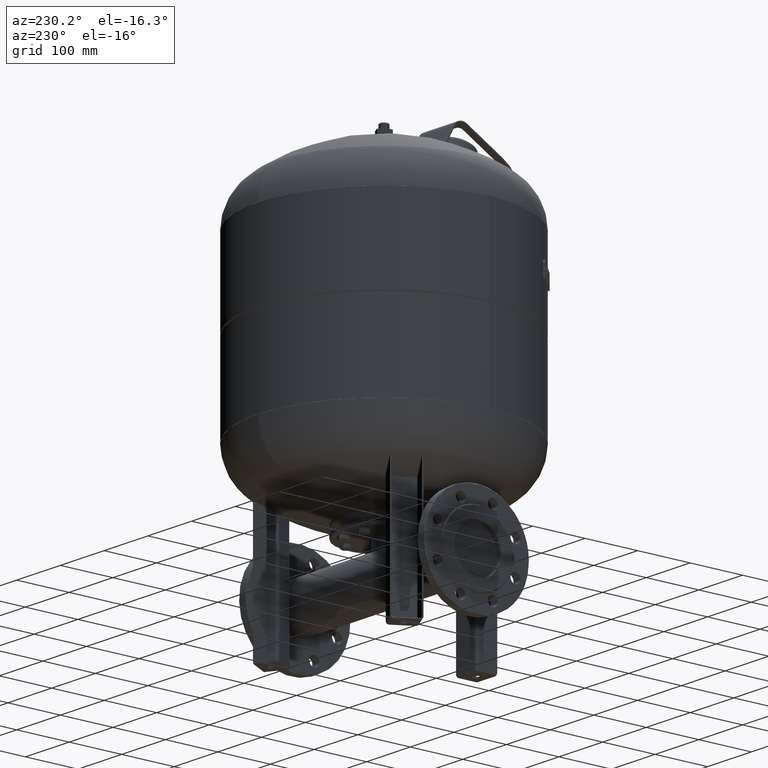
[diagram: clean part render]
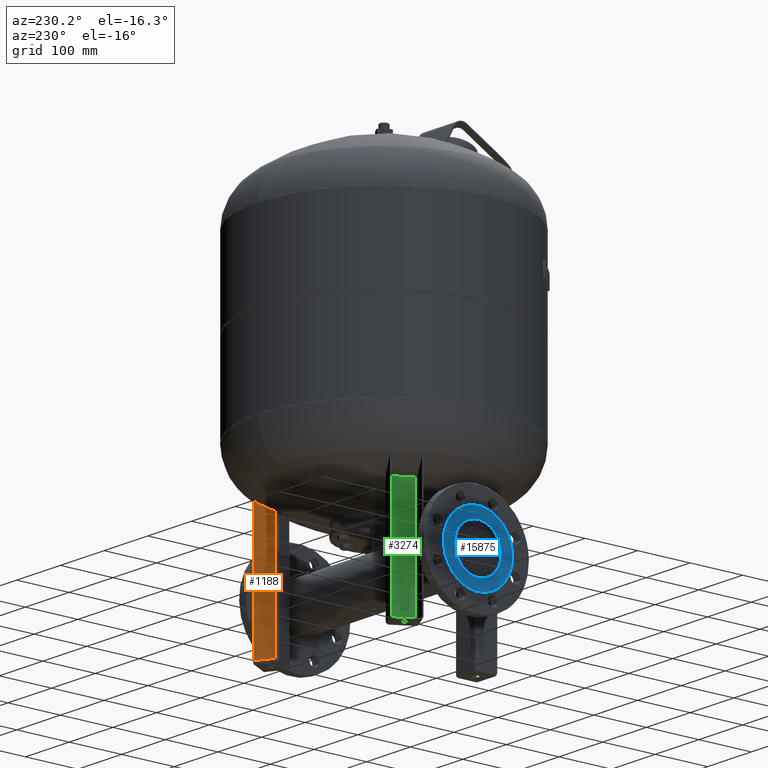
[diagram: same view with three faces highlighted in distinct colors, each labeled with its STEP entity id]
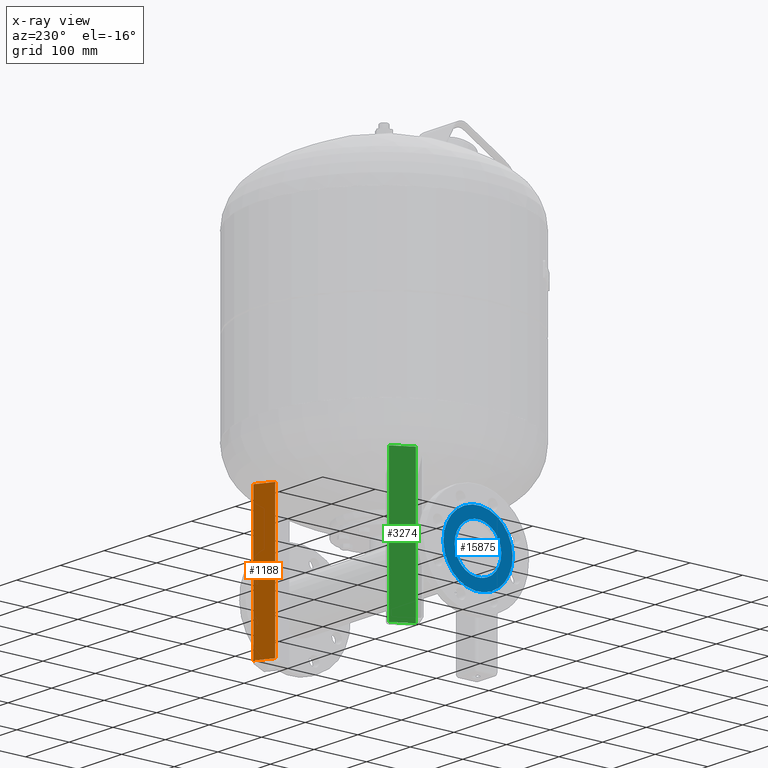
[diagram: x-ray of the same camera — body ghosted, the three highlighted faces saturated]
A machine part, auxiliary view with three faces highlighted in distinct colors.
The next image is the same camera in x-ray (body ghosted, the three faces saturated) — at least one of them is partly hidden behind the body in this view.
Their STEP definitions:

[orange] entity #1188 — the highlighted planar face has unit normal (-0.5, 0.866, 0).
#250=CARTESIAN_POINT('',(155.941941036073360,118.900635094610920,274.0));
#251=VERTEX_POINT('',#250);
#259=CARTESIAN_POINT('',(126.497077307402440,101.900635094610920,274.0));
#260=VERTEX_POINT('',#259);
#261=CARTESIAN_POINT('',(126.497077307402440,101.900635094610920,274.0));
#262=DIRECTION('',(0.866025403784439,0.500000000000000,0.0));
#263=VECTOR('',#262,34.000000000000007);
#264=LINE('',#261,#263);
#265=EDGE_CURVE('',#260,#251,#264,.T.);
#695=CARTESIAN_POINT('',(155.941941036073330,118.900635094610920,5.000000000000004));
#696=VERTEX_POINT('',#695);
#723=CARTESIAN_POINT('',(155.941941036073330,118.900635094610920,5.000000000000004));
#724=DIRECTION('',(0.0,0.0,1.0));
#725=VECTOR('',#724,269.0);
#726=LINE('',#723,#725);
#727=EDGE_CURVE('',#696,#251,#726,.T.);
#923=CARTESIAN_POINT('',(126.497077307402440,101.900635094610920,5.000000000000004));
#924=VERTEX_POINT('',#923);
#932=CARTESIAN_POINT('',(126.497077307402440,101.900635094610920,5.000000000000004));
#933=DIRECTION('',(0.866025403784438,0.500000000000000,0.0));
#934=VECTOR('',#933,33.999999999999986);
#935=LINE('',#932,#934);
#936=EDGE_CURVE('',#924,#696,#935,.T.);
#1058=CARTESIAN_POINT('',(126.497077307402440,101.900635094610920,5.000000000000004));
#1059=DIRECTION('',(0.0,0.0,1.0));
#1060=VECTOR('',#1059,269.0);
#1061=LINE('',#1058,#1060);
#1062=EDGE_CURVE('',#924,#260,#1061,.T.);
#1177=CARTESIAN_POINT('',(122.166950288480240,99.400635094610919,4.592425E-015));
#1178=DIRECTION('',(-0.500000000000000,0.866025403784439,1.836970E-016));
#1179=DIRECTION('',(-0.866025403784439,-0.500000000000000,-2.039447E-032));
#1180=AXIS2_PLACEMENT_3D('',#1177,#1178,#1179);
#1181=PLANE('',#1180);
#1182=ORIENTED_EDGE('',*,*,#727,.F.);
#1183=ORIENTED_EDGE('',*,*,#936,.F.);
#1184=ORIENTED_EDGE('',*,*,#1062,.T.);
#1185=ORIENTED_EDGE('',*,*,#265,.T.);
#1186=EDGE_LOOP('',(#1182,#1183,#1184,#1185));
#1187=FACE_OUTER_BOUND('',#1186,.T.);
#1188=ADVANCED_FACE('',(#1187),#1181,.T.);

[blue] entity #15875 — the highlighted face is a freeform B-spline surface patch.
#14298=CARTESIAN_POINT('',(-215.0,-25.257106536095925,54.023950854255077));
#14299=VERTEX_POINT('',#14298);
#14315=CARTESIAN_POINT('',(-215.0,25.257106536095929,175.976049145744920));
#14316=VERTEX_POINT('',#14315);
#14323=CARTESIAN_POINT('',(-215.0,0.0,115.0));
#14324=DIRECTION('',(1.0,7.029548E-017,1.697083E-016));
#14325=DIRECTION('',(1.836910E-016,-0.382683432365090,-0.923879532511287));
#14326=AXIS2_PLACEMENT_3D('',#14323,#14324,#14325);
#14327=CIRCLE('',#14326,66.0);
#14328=EDGE_CURVE('',#14316,#14299,#14327,.T.);
#14865=CARTESIAN_POINT('',(-215.0,-17.010278568628241,73.933554779873305));
#14866=VERTEX_POINT('',#14865);
#14882=CARTESIAN_POINT('',(-215.0,17.010278568628237,156.066445220126700));
#14883=VERTEX_POINT('',#14882);
#14890=CARTESIAN_POINT('',(-215.0,0.0,115.0));
#14891=DIRECTION('',(-1.000000000000000,-7.029548E-017,-1.697083E-016));
#14892=DIRECTION('',(1.836910E-016,-0.382683432365090,-0.923879532511287));
#14893=AXIS2_PLACEMENT_3D('',#14890,#14891,#14892);
#14894=CIRCLE('',#14893,44.449999999999996);
#14895=EDGE_CURVE('',#14883,#14866,#14894,.T.);
#15546=CARTESIAN_POINT('',(-215.0,0.0,115.0));
#15547=DIRECTION('',(-1.000000000000000,-7.029548E-017,-1.697083E-016));
#15548=DIRECTION('',(1.836910E-016,-0.382683432365090,-0.923879532511287));
#15549=AXIS2_PLACEMENT_3D('',#15546,#15547,#15548);
#15550=CIRCLE('',#15549,44.449999999999996);
#15551=EDGE_CURVE('',#14866,#14883,#15550,.T.);
#15850=CARTESIAN_POINT('',(-215.0,0.0,115.0));
#15851=DIRECTION('',(1.0,7.029548E-017,1.697083E-016));
#15852=DIRECTION('',(1.836910E-016,-0.382683432365090,-0.923879532511287));
#15853=AXIS2_PLACEMENT_3D('',#15850,#15851,#15852);
#15854=CIRCLE('',#15853,66.0);
#15855=EDGE_CURVE('',#14299,#14316,#15854,.T.);
#15862=CARTESIAN_POINT('',(-215.000000000000030,112.669047558312120,161.669047558312120));
#15863=CARTESIAN_POINT('',(-215.0,46.669047558312116,2.330952441687856));
#15864=CARTESIAN_POINT('',(-215.000000000000030,-46.669047558312172,227.669047558312120));
#15865=CARTESIAN_POINT('',(-214.999999999999970,-112.669047558312170,68.330952441687856));
#15866=B_SPLINE_SURFACE_WITH_KNOTS('',1,1,((#15862,#15864),(#15863,#15865)),.UNSPECIFIED.,.F.,.F.,.U.,(2,2),(2,2),(0.0,172.466311363681680),(0.0,172.466311363681710),.UNSPECIFIED.);
#15867=ORIENTED_EDGE('',*,*,#15855,.F.);
#15868=ORIENTED_EDGE('',*,*,#14328,.F.);
#15869=EDGE_LOOP('',(#15867,#15868));
#15870=FACE_OUTER_BOUND('',#15869,.T.);
#15871=ORIENTED_EDGE('',*,*,#15551,.F.);
#15872=ORIENTED_EDGE('',*,*,#14895,.F.);
#15873=EDGE_LOOP('',(#15871,#15872));
#15874=FACE_BOUND('',#15873,.T.);
#15875=ADVANCED_FACE('',(#15870,#15874),#15866,.T.);

[green] entity #3274 — the highlighted planar face has unit normal (0.866, -0.5, -0).
#2327=CARTESIAN_POINT('',(-126.832013797941230,96.320508075688835,274.0));
#2328=VERTEX_POINT('',#2327);
#2336=CARTESIAN_POINT('',(-146.832013797941220,61.679491924311279,274.0));
#2337=VERTEX_POINT('',#2336);
#2338=CARTESIAN_POINT('',(-146.832013797941220,61.679491924311279,274.0));
#2339=DIRECTION('',(0.500000000000000,0.866025403784439,0.0));
#2340=VECTOR('',#2339,40.0);
#2341=LINE('',#2338,#2340);
#2342=EDGE_CURVE('',#2337,#2328,#2341,.T.);
#2879=CARTESIAN_POINT('',(-146.832013797941220,61.679491924311286,4.500000000000004));
#2880=VERTEX_POINT('',#2879);
#2888=CARTESIAN_POINT('',(-126.832013797941230,96.320508075688835,4.499999999999996));
#2889=VERTEX_POINT('',#2888);
#2890=CARTESIAN_POINT('',(-146.832013797941220,61.679491924311286,4.500000000000004));
#2891=DIRECTION('',(0.500000000000000,0.866025403784439,-1.776357E-016));
#2892=VECTOR('',#2891,39.999999999999993);
#2893=LINE('',#2890,#2892);
#2894=EDGE_CURVE('',#2880,#2889,#2893,.T.);
#3247=CARTESIAN_POINT('',(-126.832013797941230,96.320508075688835,4.499999999999996));
#3248=DIRECTION('',(0.0,0.0,1.0));
#3249=VECTOR('',#3248,269.500000000000000);
#3250=LINE('',#3247,#3249);
#3251=EDGE_CURVE('',#2889,#2328,#3250,.T.);
#3258=CARTESIAN_POINT('',(-125.582013797941230,98.485571585149927,1.999999999999996));
#3259=DIRECTION('',(0.866025403784439,-0.500000000000000,-5.438524E-032));
#3260=DIRECTION('',(0.500000000000000,0.866025403784439,-1.836970E-016));
#3261=AXIS2_PLACEMENT_3D('',#3258,#3259,#3260);
#3262=PLANE('',#3261);
#3263=ORIENTED_EDGE('',*,*,#2894,.F.);
#3264=CARTESIAN_POINT('',(-146.832013797941220,61.679491924311279,274.0));
#3265=DIRECTION('',(0.0,0.0,-1.0));
#3266=VECTOR('',#3265,269.500000000000000);
#3267=LINE('',#3264,#3266);
#3268=EDGE_CURVE('',#2337,#2880,#3267,.T.);
#3269=ORIENTED_EDGE('',*,*,#3268,.F.);
#3270=ORIENTED_EDGE('',*,*,#2342,.T.);
#3271=ORIENTED_EDGE('',*,*,#3251,.F.);
#3272=EDGE_LOOP('',(#3263,#3269,#3270,#3271));
#3273=FACE_OUTER_BOUND('',#3272,.T.);
#3274=ADVANCED_FACE('',(#3273),#3262,.F.);